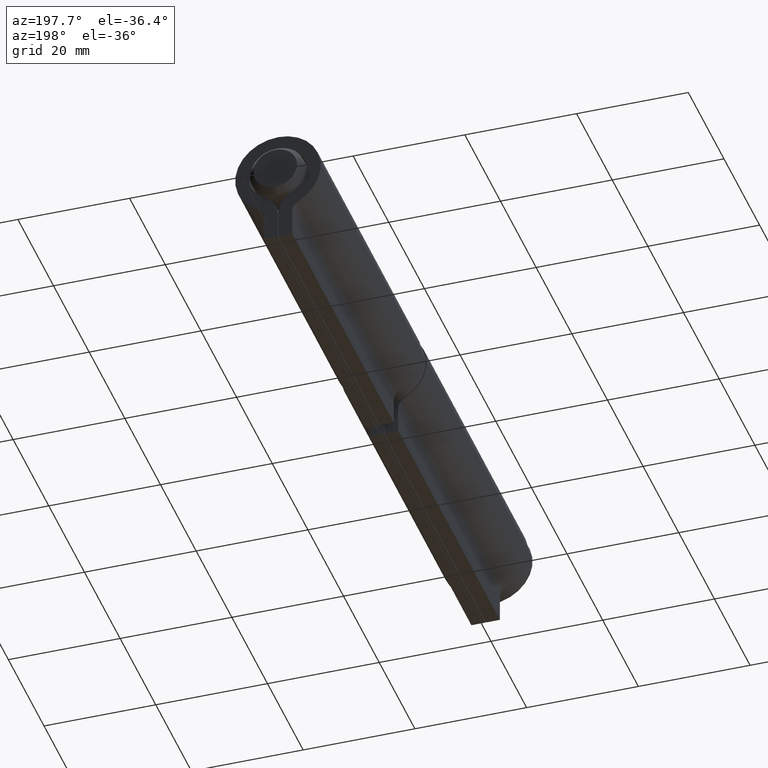
[diagram: clean part render]
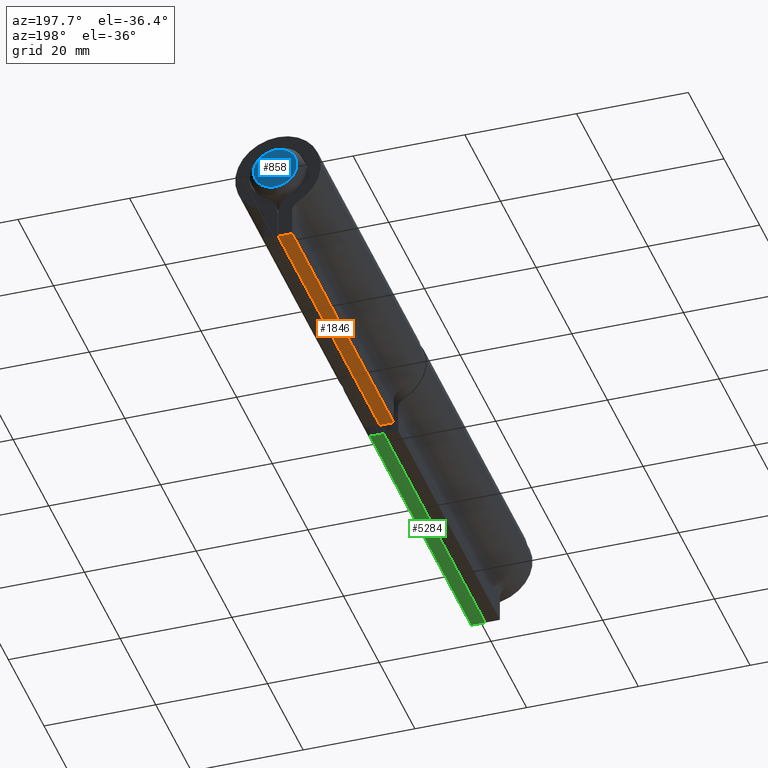
[diagram: same view with three faces highlighted in distinct colors, each labeled with its STEP entity id]
A machine part, auxiliary view with three faces highlighted in distinct colors.
Their STEP definitions:

[orange] entity #1846 — the highlighted planar face has unit normal (0, 0, 1).
#80 = DIRECTION ( 'NONE',  ( -0.000000000000000000, -1.000000000000000000, -0.000000000000000000 ) ) ;
#512 = CARTESIAN_POINT ( 'NONE',  ( -2.550000000000000266, 28.50000000000000355, -13.35000000000000142 ) ) ;
#711 = ORIENTED_EDGE ( 'NONE', *, *, #11857, .T. ) ;
#1122 = VERTEX_POINT ( 'NONE', #3103 ) ;
#1128 = EDGE_CURVE ( 'NONE', #6585, #1122, #7070, .T. ) ;
#1444 = VECTOR ( 'NONE', #80, 1000.000000000000000 ) ;
#1769 = CARTESIAN_POINT ( 'NONE',  ( -2.550000000000000266, -28.50000000000000355, -13.35000000000000142 ) ) ;
#1846 = ADVANCED_FACE ( 'NONE', ( #9930 ), #4673, .F. ) ;
#2527 = ORIENTED_EDGE ( 'NONE', *, *, #1128, .F. ) ;
#2802 = AXIS2_PLACEMENT_3D ( 'NONE', #512, #4624, #4804 ) ;
#3005 = VECTOR ( 'NONE', #13832, 1000.000000000000000 ) ;
#3103 = CARTESIAN_POINT ( 'NONE',  ( -2.550000000000000266, 28.50000000000000355, -13.35000000000000142 ) ) ;
#4233 = CARTESIAN_POINT ( 'NONE',  ( -2.550000000000000266, 28.50000000000000355, -13.35000000000000142 ) ) ;
#4624 = DIRECTION ( 'NONE',  ( 0.000000000000000000, 0.000000000000000000, 1.000000000000000000 ) ) ;
#4673 = PLANE ( 'NONE',  #2802 ) ;
#4804 = DIRECTION ( 'NONE',  ( 1.000000000000000000, 0.000000000000000000, -0.000000000000000000 ) ) ;
#4938 = VECTOR ( 'NONE', #4995, 1000.000000000000000 ) ;
#4995 = DIRECTION ( 'NONE',  ( -1.000000000000000000, -0.000000000000000000, -0.000000000000000000 ) ) ;
#5305 = CARTESIAN_POINT ( 'NONE',  ( -0.05000000000000028727, -28.50000000000000355, -13.35000000000000142 ) ) ;
#6585 = VERTEX_POINT ( 'NONE', #13892 ) ;
#6618 = ORIENTED_EDGE ( 'NONE', *, *, #9685, .T. ) ;
#6662 = CARTESIAN_POINT ( 'NONE',  ( -2.550000000000000266, 28.50000000000000355, -13.35000000000000142 ) ) ;
#6961 = LINE ( 'NONE', #12864, #12216 ) ;
#7028 = VERTEX_POINT ( 'NONE', #5305 ) ;
#7038 = LINE ( 'NONE', #6662, #1444 ) ;
#7070 = LINE ( 'NONE', #4233, #3005 ) ;
#7665 = EDGE_CURVE ( 'NONE', #1122, #13787, #7038, .T. ) ;
#9685 = EDGE_CURVE ( 'NONE', #7028, #13787, #10555, .T. ) ;
#9930 = FACE_OUTER_BOUND ( 'NONE', #10688, .T. ) ;
#10482 = CARTESIAN_POINT ( 'NONE',  ( -2.550000000000000266, -28.50000000000000355, -13.35000000000000142 ) ) ;
#10555 = LINE ( 'NONE', #1769, #4938 ) ;
#10688 = EDGE_LOOP ( 'NONE', ( #6618, #12186, #2527, #711 ) ) ;
#11795 = DIRECTION ( 'NONE',  ( -0.000000000000000000, -1.000000000000000000, -0.000000000000000000 ) ) ;
#11857 = EDGE_CURVE ( 'NONE', #6585, #7028, #6961, .T. ) ;
#12186 = ORIENTED_EDGE ( 'NONE', *, *, #7665, .F. ) ;
#12216 = VECTOR ( 'NONE', #11795, 1000.000000000000000 ) ;
#12864 = CARTESIAN_POINT ( 'NONE',  ( -0.05000000000000028727, 28.50000000000000355, -13.35000000000000142 ) ) ;
#13787 = VERTEX_POINT ( 'NONE', #10482 ) ;
#13832 = DIRECTION ( 'NONE',  ( -1.000000000000000000, -0.000000000000000000, -0.000000000000000000 ) ) ;
#13892 = CARTESIAN_POINT ( 'NONE',  ( -0.05000000000000028727, 28.50000000000000355, -13.35000000000000142 ) ) ;

[blue] entity #858 — the highlighted planar face has unit normal (0, -1, 0).
#150 = VERTEX_POINT ( 'NONE', #9897 ) ;
#256 = CARTESIAN_POINT ( 'NONE',  ( 1.387778780781445676E-14, 61.00000000000000000, 0.000000000000000000 ) ) ;
#526 = AXIS2_PLACEMENT_3D ( 'NONE', #256, #13219, #13171 ) ;
#858 = ADVANCED_FACE ( 'NONE', ( #3694 ), #10254, .F. ) ;
#2200 = ORIENTED_EDGE ( 'NONE', *, *, #13633, .T. ) ;
#2502 = DIRECTION ( 'NONE',  ( 0.000000000000000000, -1.000000000000000000, 0.000000000000000000 ) ) ;
#2888 = AXIS2_PLACEMENT_3D ( 'NONE', #3781, #2502, #11348 ) ;
#3694 = FACE_OUTER_BOUND ( 'NONE', #9841, .T. ) ;
#3781 = CARTESIAN_POINT ( 'NONE',  ( 4.900000000000015454, 61.00000000000000000, 0.000000000000000000 ) ) ;
#9841 = EDGE_LOOP ( 'NONE', ( #2200 ) ) ;
#9897 = CARTESIAN_POINT ( 'NONE',  ( 1.387778780781445676E-14, 61.00000000000000000, -3.899999999999987033 ) ) ;
#10254 = PLANE ( 'NONE',  #2888 ) ;
#11348 = DIRECTION ( 'NONE',  ( 0.000000000000000000, -0.000000000000000000, -1.000000000000000000 ) ) ;
#12690 = CIRCLE ( 'NONE', #526, 3.899999999999987033 ) ;
#13171 = DIRECTION ( 'NONE',  ( 0.000000000000000000, 0.000000000000000000, -1.000000000000000000 ) ) ;
#13219 = DIRECTION ( 'NONE',  ( -0.000000000000000000, 1.000000000000000000, -0.000000000000000000 ) ) ;
#13633 = EDGE_CURVE ( 'NONE', #150, #150, #12690, .T. ) ;

[green] entity #5284 — the highlighted planar face has unit normal (0, 0, 1).
#187 = ORIENTED_EDGE ( 'NONE', *, *, #2328, .T. ) ;
#691 = CARTESIAN_POINT ( 'NONE',  ( 2.550000000000000266, 28.50000000000000000, -13.35000000000000142 ) ) ;
#779 = AXIS2_PLACEMENT_3D ( 'NONE', #6124, #10545, #11630 ) ;
#815 = CARTESIAN_POINT ( 'NONE',  ( 0.05000000000000028727, 28.50000000000000000, -13.35000000000000142 ) ) ;
#903 = ORIENTED_EDGE ( 'NONE', *, *, #4841, .F. ) ;
#1969 = CARTESIAN_POINT ( 'NONE',  ( 0.05000000000000028727, -28.49999999999999645, -13.35000000000000142 ) ) ;
#2171 = VERTEX_POINT ( 'NONE', #6273 ) ;
#2328 = EDGE_CURVE ( 'NONE', #4259, #11566, #12626, .T. ) ;
#2621 = VECTOR ( 'NONE', #12381, 1000.000000000000000 ) ;
#2971 = PLANE ( 'NONE',  #779 ) ;
#3885 = DIRECTION ( 'NONE',  ( -0.000000000000000000, -1.000000000000000000, -0.000000000000000000 ) ) ;
#3999 = VECTOR ( 'NONE', #6566, 1000.000000000000000 ) ;
#4259 = VERTEX_POINT ( 'NONE', #11886 ) ;
#4788 = CARTESIAN_POINT ( 'NONE',  ( 2.550000000000000266, 28.50000000000000000, -13.35000000000000142 ) ) ;
#4841 = EDGE_CURVE ( 'NONE', #2171, #11566, #13645, .T. ) ;
#4936 = ORIENTED_EDGE ( 'NONE', *, *, #8648, .F. ) ;
#5284 = ADVANCED_FACE ( 'NONE', ( #13812 ), #2971, .F. ) ;
#5464 = LINE ( 'NONE', #4788, #2621 ) ;
#5977 = ORIENTED_EDGE ( 'NONE', *, *, #11032, .T. ) ;
#6124 = CARTESIAN_POINT ( 'NONE',  ( 2.550000000000000266, 28.50000000000000000, -13.35000000000000142 ) ) ;
#6273 = CARTESIAN_POINT ( 'NONE',  ( 0.05000000000000028727, 28.50000000000000000, -13.35000000000000142 ) ) ;
#6380 = DIRECTION ( 'NONE',  ( -0.000000000000000000, -1.000000000000000000, -0.000000000000000000 ) ) ;
#6566 = DIRECTION ( 'NONE',  ( -1.000000000000000000, 0.000000000000000000, 0.000000000000000000 ) ) ;
#7858 = CARTESIAN_POINT ( 'NONE',  ( 2.550000000000000266, 28.50000000000000000, -13.35000000000000142 ) ) ;
#8581 = EDGE_LOOP ( 'NONE', ( #187, #903, #4936, #5977 ) ) ;
#8648 = EDGE_CURVE ( 'NONE', #13300, #2171, #5464, .T. ) ;
#9514 = VECTOR ( 'NONE', #3885, 1000.000000000000000 ) ;
#9848 = LINE ( 'NONE', #691, #9514 ) ;
#10545 = DIRECTION ( 'NONE',  ( 0.000000000000000000, -0.000000000000000000, 1.000000000000000000 ) ) ;
#11032 = EDGE_CURVE ( 'NONE', #13300, #4259, #9848, .T. ) ;
#11566 = VERTEX_POINT ( 'NONE', #1969 ) ;
#11630 = DIRECTION ( 'NONE',  ( 1.000000000000000000, 0.000000000000000000, -0.000000000000000000 ) ) ;
#11886 = CARTESIAN_POINT ( 'NONE',  ( 2.550000000000000266, -28.49999999999999645, -13.35000000000000142 ) ) ;
#12381 = DIRECTION ( 'NONE',  ( -1.000000000000000000, 0.000000000000000000, 0.000000000000000000 ) ) ;
#12626 = LINE ( 'NONE', #12997, #3999 ) ;
#12997 = CARTESIAN_POINT ( 'NONE',  ( 2.550000000000000266, -28.49999999999999645, -13.35000000000000142 ) ) ;
#13300 = VERTEX_POINT ( 'NONE', #7858 ) ;
#13645 = LINE ( 'NONE', #815, #13823 ) ;
#13812 = FACE_OUTER_BOUND ( 'NONE', #8581, .T. ) ;
#13823 = VECTOR ( 'NONE', #6380, 1000.000000000000000 ) ;